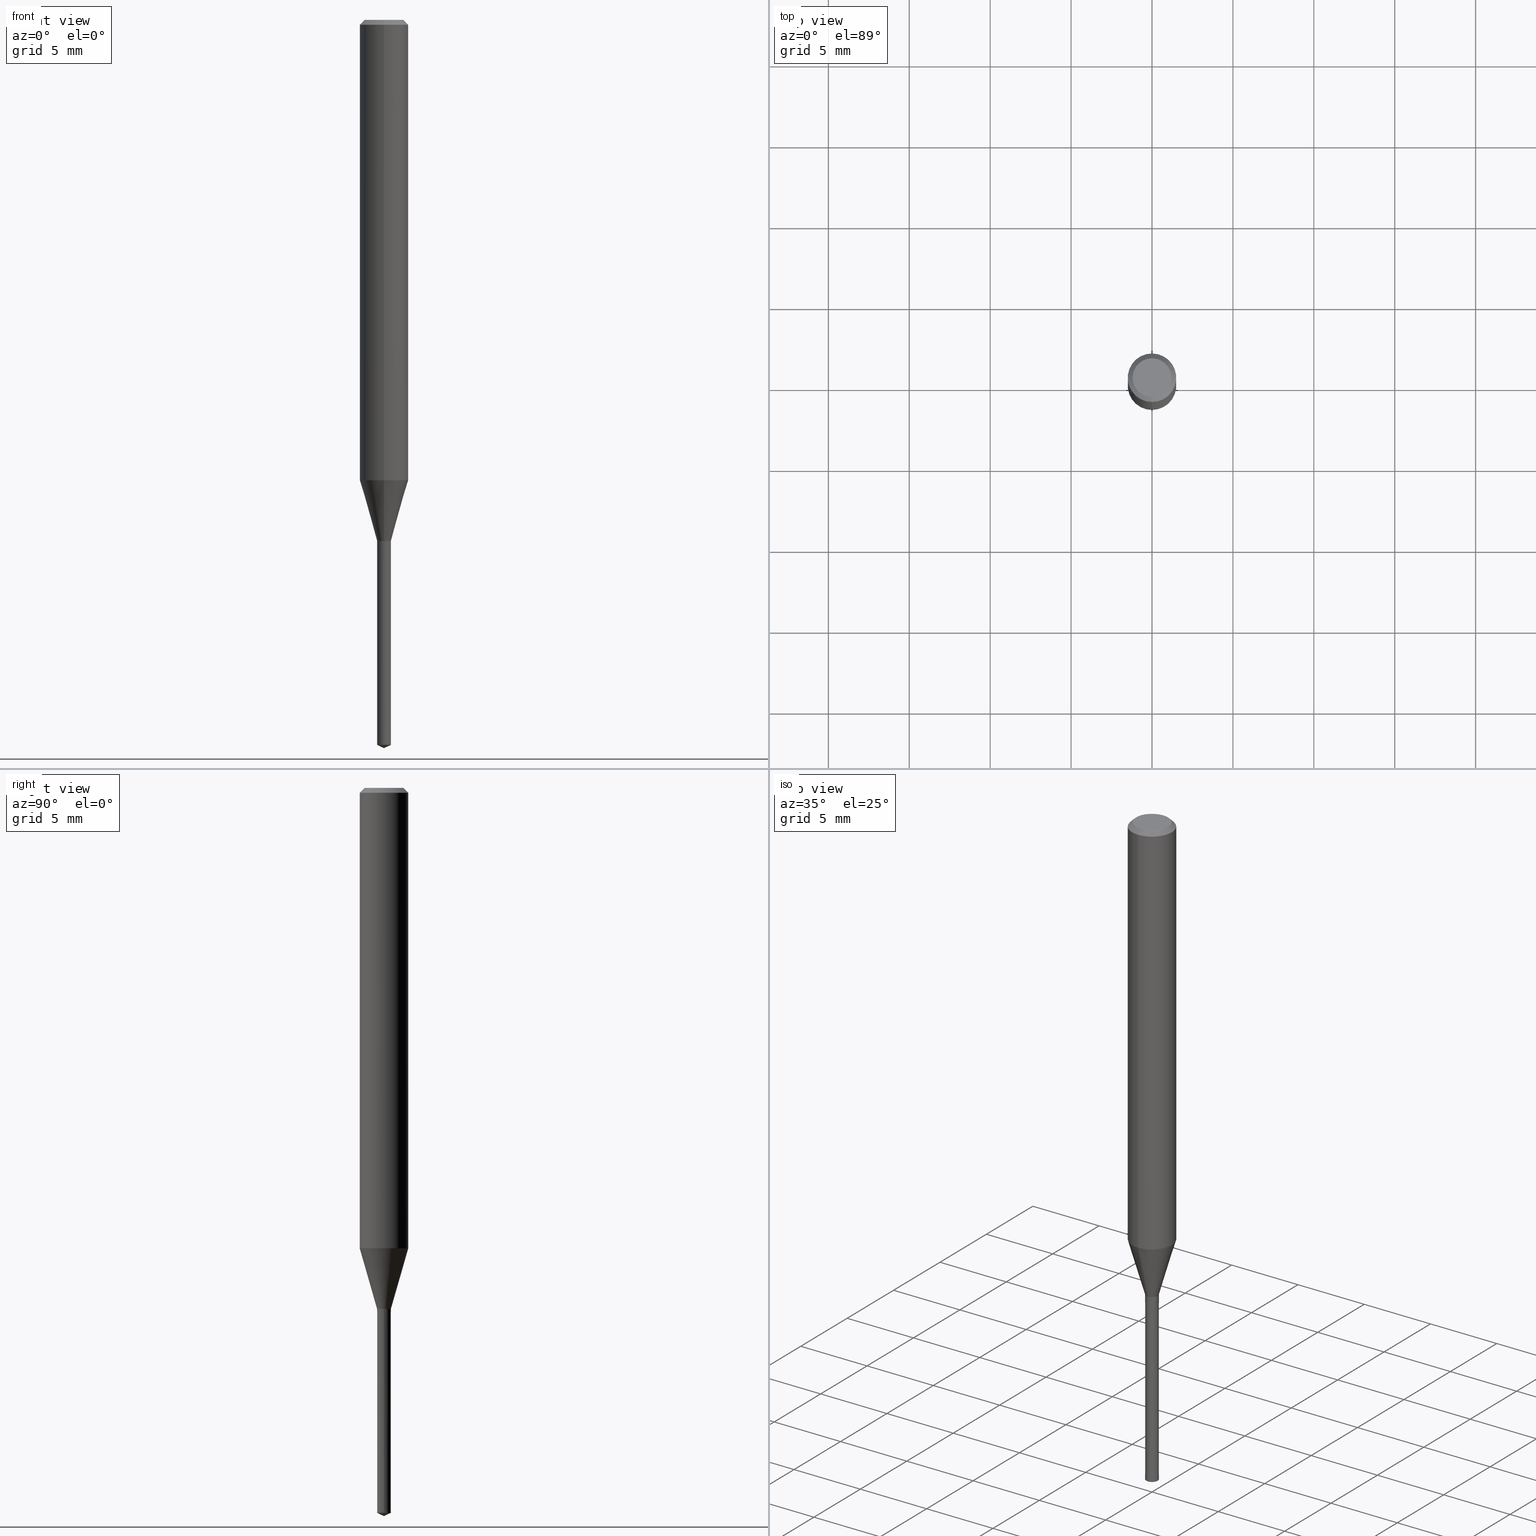
[diagram: canonical four-view strip — front | top / right | iso, engineering-drawing reading convention]
A machine part, canonical four-view strip (front | top / right | iso — engineering-drawing reading convention). The complete STEP part file that produces these views, byte-faithful:
ISO-10303-21;
HEADER;
FILE_DESCRIPTION(('no description'),'unknown implementation level');
FILE_NAME('UTDLX2085-128-Huellk.stp','  ',('CIMSOURCE GmbH'),('CADClick - KiM GmbH - www.kimweb.de'),'unknown preprocess','ACIS','unknown authorization');
FILE_SCHEMA(('automotive_design'));
ENDSEC;
DATA;
#1=MECHANICAL_DESIGN_GEOMETRIC_PRESENTATION_REPRESENTATION(' ',(#14,#15,#16,#17,#18,#19,#20,#21,#22,#23,#24,#25,#26,#27,#28,#29,#30,#31,#32,#33,#34,#35,#36,#37,#38,#39,#40,#41,#42,#43,#44,#45,#46,#47,#48,#49,#50,#51,#52,#53,#54,#55,#56,#57,#58,#59,#60,#61,#62,#63,#64,#65,#66,#67,#68,#69,#70,#71),#10);
#2=PRODUCT_DEFINITION_CONTEXT('',#72,'design');
#3=APPLICATION_PROTOCOL_DEFINITION('INTERNATIONAL STANDARD','automotive_design',1994,#72);
#4=PRODUCT_CATEGORY_RELATIONSHIP('NONE','NONE',#73,#74);
#5=SHAPE_DEFINITION_REPRESENTATION(#75,#76);
#6=PRODUCT_DEFINITION_CONTEXT('',#77,'design');
#7=APPLICATION_PROTOCOL_DEFINITION('INTERNATIONAL STANDARD','automotive_design',1994,#77);
#8=PRODUCT_CATEGORY_RELATIONSHIP('NONE','NONE',#78,#79);
#9=SHAPE_DEFINITION_REPRESENTATION(#80,#81);
#10= (GEOMETRIC_REPRESENTATION_CONTEXT(3)GLOBAL_UNCERTAINTY_ASSIGNED_CONTEXT((#84))GLOBAL_UNIT_ASSIGNED_CONTEXT((#86,#87,#88))REPRESENTATION_CONTEXT('NONE','WORKSPACE'));
#14=STYLED_ITEM('',(#90),#91);
#15=STYLED_ITEM('',(#92),#93);
#16=STYLED_ITEM('',(#94),#95);
#17=STYLED_ITEM('',(#96),#97);
#18=STYLED_ITEM('',(#98),#99);
#19=STYLED_ITEM('',(#100),#101);
#20=STYLED_ITEM('',(#102),#103);
#21=STYLED_ITEM('',(#104),#105);
#22=STYLED_ITEM('',(#106),#107);
#23=STYLED_ITEM('',(#108),#109);
#24=STYLED_ITEM('',(#110),#111);
#25=STYLED_ITEM('',(#112),#113);
#26=STYLED_ITEM('',(#114),#115);
#27=STYLED_ITEM('',(#116),#117);
#28=STYLED_ITEM('',(#118),#119);
#29=STYLED_ITEM('',(#120),#121);
#30=STYLED_ITEM('',(#122),#123);
#31=STYLED_ITEM('',(#124),#125);
#32=STYLED_ITEM('',(#126),#127);
#33=STYLED_ITEM('',(#128),#129);
#34=STYLED_ITEM('',(#130),#131);
#35=STYLED_ITEM('',(#132),#133);
#36=STYLED_ITEM('',(#134),#135);
#37=STYLED_ITEM('',(#136),#137);
#38=STYLED_ITEM('',(#138),#139);
#39=STYLED_ITEM('',(#140),#141);
#40=STYLED_ITEM('',(#142),#143);
#41=STYLED_ITEM('',(#144),#145);
#42=STYLED_ITEM('',(#146),#147);
#43=STYLED_ITEM('',(#148),#149);
#44=STYLED_ITEM('',(#150),#151);
#45=STYLED_ITEM('',(#152),#153);
#46=STYLED_ITEM('',(#154),#155);
#47=STYLED_ITEM('',(#156),#157);
#48=STYLED_ITEM('',(#158),#159);
#49=STYLED_ITEM('',(#160),#161);
#50=STYLED_ITEM('',(#162),#163);
#51=STYLED_ITEM('',(#164),#165);
#52=STYLED_ITEM('',(#166),#167);
#53=STYLED_ITEM('',(#168),#169);
#54=STYLED_ITEM('',(#170),#171);
#55=STYLED_ITEM('',(#172),#173);
#56=STYLED_ITEM('',(#174),#175);
#57=STYLED_ITEM('',(#176),#177);
#58=STYLED_ITEM('',(#178),#179);
#59=STYLED_ITEM('',(#180),#181);
#60=STYLED_ITEM('',(#182),#183);
#61=STYLED_ITEM('',(#184),#185);
#62=STYLED_ITEM('',(#186),#187);
#63=STYLED_ITEM('',(#188),#189);
#64=STYLED_ITEM('',(#190),#191);
#65=STYLED_ITEM('',(#192),#193);
#66=STYLED_ITEM('',(#194),#195);
#67=STYLED_ITEM('',(#196),#197);
#68=STYLED_ITEM('',(#198),#199);
#69=STYLED_ITEM('',(#200),#201);
#70=STYLED_ITEM('',(#202),#203);
#71=STYLED_ITEM('',(#204),#205);
#72=APPLICATION_CONTEXT(' ');
#73=PRODUCT_CATEGORY('part','NONE');
#74=PRODUCT_RELATED_PRODUCT_CATEGORY('detail',' ',(#206));
#75=PRODUCT_DEFINITION_SHAPE('NONE','NONE',#207);
#76=ADVANCED_BREP_SHAPE_REPRESENTATION('1',(#113,#208),#10);
#77=APPLICATION_CONTEXT(' ');
#78=PRODUCT_CATEGORY('part','NONE');
#79=PRODUCT_RELATED_PRODUCT_CATEGORY('detail',' ',(#209));
#80=PRODUCT_DEFINITION_SHAPE('NONE','NONE',#210);
#81=ADVANCED_BREP_SHAPE_REPRESENTATION('2',(#107,#211),#10);
#84=UNCERTAINTY_MEASURE_WITH_UNIT(LENGTH_MEASURE(1.0E-006),#86,'','');
#86= (CONVERSION_BASED_UNIT('MILLIMETRE',#214)LENGTH_UNIT()NAMED_UNIT(#217));
#87= (NAMED_UNIT(#219)PLANE_ANGLE_UNIT()SI_UNIT($,.RADIAN.));
#88= (NAMED_UNIT(#219)SOLID_ANGLE_UNIT()SI_UNIT($,.STERADIAN.));
#90=PRESENTATION_STYLE_ASSIGNMENT((#225));
#91=EDGE_CURVE('',#105,#117,#226,.T.);
#92=PRESENTATION_STYLE_ASSIGNMENT((#227));
#93=VERTEX_POINT('',#228);
#94=PRESENTATION_STYLE_ASSIGNMENT((#229));
#95=ADVANCED_FACE('',(#230),#231,.T.);
#96=PRESENTATION_STYLE_ASSIGNMENT((#232));
#97=EDGE_CURVE('',#161,#93,#233,.T.);
#98=PRESENTATION_STYLE_ASSIGNMENT((#234));
#99=EDGE_CURVE('',#199,#119,#235,.T.);
#100=PRESENTATION_STYLE_ASSIGNMENT((#236));
#101=EDGE_CURVE('',#145,#163,#237,.T.);
#102=PRESENTATION_STYLE_ASSIGNMENT((#238));
#103=ADVANCED_FACE('',(#239),#240,.T.);
#104=PRESENTATION_STYLE_ASSIGNMENT((#241));
#105=VERTEX_POINT('',#242);
#106=PRESENTATION_STYLE_ASSIGNMENT((#243));
#107=MANIFOLD_SOLID_BREP('2',#244);
#108=PRESENTATION_STYLE_ASSIGNMENT((#245));
#109=ADVANCED_FACE('',(#246),#247,.T.);
#110=PRESENTATION_STYLE_ASSIGNMENT((#248));
#111=EDGE_CURVE('',#201,#135,#249,.T.);
#112=PRESENTATION_STYLE_ASSIGNMENT((#250));
#113=MANIFOLD_SOLID_BREP('1',#251);
#114=PRESENTATION_STYLE_ASSIGNMENT((#252));
#115=ADVANCED_FACE('',(#253),#254,.T.);
#116=PRESENTATION_STYLE_ASSIGNMENT((#255));
#117=VERTEX_POINT('',#256);
#118=PRESENTATION_STYLE_ASSIGNMENT((#257));
#119=VERTEX_POINT('',#258);
#120=PRESENTATION_STYLE_ASSIGNMENT((#259));
#121=ADVANCED_FACE('',(#260),#261,.T.);
#122=PRESENTATION_STYLE_ASSIGNMENT((#262));
#123=EDGE_CURVE('',#161,#201,#263,.T.);
#124=PRESENTATION_STYLE_ASSIGNMENT((#264));
#125=EDGE_CURVE('',#119,#105,#265,.T.);
#126=PRESENTATION_STYLE_ASSIGNMENT((#266));
#127=ADVANCED_FACE('',(#267),#268,.T.);
#128=PRESENTATION_STYLE_ASSIGNMENT((#269));
#129=ADVANCED_FACE('',(#270),#271,.T.);
#130=PRESENTATION_STYLE_ASSIGNMENT((#272));
#131=ADVANCED_FACE('',(#273),#274,.T.);
#132=PRESENTATION_STYLE_ASSIGNMENT((#275));
#133=VERTEX_POINT('',#276);
#134=PRESENTATION_STYLE_ASSIGNMENT((#277));
#135=VERTEX_POINT('',#278);
#136=PRESENTATION_STYLE_ASSIGNMENT((#279));
#137=EDGE_CURVE('',#149,#133,#280,.T.);
#138=PRESENTATION_STYLE_ASSIGNMENT((#281));
#139=ADVANCED_FACE('',(#282),#283,.T.);
#140=PRESENTATION_STYLE_ASSIGNMENT((#284));
#141=VERTEX_POINT('',#285);
#142=PRESENTATION_STYLE_ASSIGNMENT((#286));
#143=EDGE_CURVE('',#133,#163,#287,.T.);
#144=PRESENTATION_STYLE_ASSIGNMENT((#288));
#145=VERTEX_POINT('',#289);
#146=PRESENTATION_STYLE_ASSIGNMENT((#290));
#147=EDGE_CURVE('',#93,#179,#291,.T.);
#148=PRESENTATION_STYLE_ASSIGNMENT((#292));
#149=VERTEX_POINT('',#293);
#150=PRESENTATION_STYLE_ASSIGNMENT((#294));
#151=EDGE_CURVE('',#201,#161,#295,.T.);
#152=PRESENTATION_STYLE_ASSIGNMENT((#296));
#153=EDGE_CURVE('',#179,#93,#297,.T.);
#154=PRESENTATION_STYLE_ASSIGNMENT((#298));
#155=EDGE_CURVE('',#165,#117,#299,.T.);
#156=PRESENTATION_STYLE_ASSIGNMENT((#300));
#157=EDGE_CURVE('',#133,#149,#301,.T.);
#158=PRESENTATION_STYLE_ASSIGNMENT((#302));
#159=ADVANCED_FACE('',(#303),#304,.T.);
#160=PRESENTATION_STYLE_ASSIGNMENT((#305));
#161=VERTEX_POINT('',#306);
#162=PRESENTATION_STYLE_ASSIGNMENT((#307));
#163=VERTEX_POINT('',#308);
#164=PRESENTATION_STYLE_ASSIGNMENT((#309));
#165=VERTEX_POINT('',#310);
#166=PRESENTATION_STYLE_ASSIGNMENT((#311));
#167=EDGE_CURVE('',#149,#179,#312,.T.);
#168=PRESENTATION_STYLE_ASSIGNMENT((#313));
#169=EDGE_CURVE('',#163,#145,#314,.T.);
#170=PRESENTATION_STYLE_ASSIGNMENT((#315));
#171=EDGE_CURVE('',#141,#135,#316,.T.);
#172=PRESENTATION_STYLE_ASSIGNMENT((#317));
#173=ADVANCED_FACE('',(#318),#319,.T.);
#174=PRESENTATION_STYLE_ASSIGNMENT((#320));
#175=ADVANCED_FACE('',(#321),#322,.T.);
#176=PRESENTATION_STYLE_ASSIGNMENT((#323));
#177=EDGE_CURVE('',#105,#165,#324,.T.);
#178=PRESENTATION_STYLE_ASSIGNMENT((#325));
#179=VERTEX_POINT('',#326);
#180=PRESENTATION_STYLE_ASSIGNMENT((#327));
#181=EDGE_CURVE('',#141,#161,#328,.T.);
#182=PRESENTATION_STYLE_ASSIGNMENT((#329));
#183=EDGE_CURVE('',#179,#201,#330,.T.);
#184=PRESENTATION_STYLE_ASSIGNMENT((#331));
#185=EDGE_CURVE('',#135,#141,#332,.T.);
#186=PRESENTATION_STYLE_ASSIGNMENT((#333));
#187=EDGE_CURVE('',#93,#133,#334,.T.);
#188=PRESENTATION_STYLE_ASSIGNMENT((#335));
#189=EDGE_CURVE('',#117,#105,#336,.T.);
#190=PRESENTATION_STYLE_ASSIGNMENT((#337));
#191=ADVANCED_FACE('',(#338),#339,.T.);
#192=PRESENTATION_STYLE_ASSIGNMENT((#340));
#193=ADVANCED_FACE('',(#341),#342,.T.);
#194=PRESENTATION_STYLE_ASSIGNMENT((#343));
#195=EDGE_CURVE('',#119,#199,#344,.T.);
#196=PRESENTATION_STYLE_ASSIGNMENT((#345));
#197=EDGE_CURVE('',#145,#149,#346,.T.);
#198=PRESENTATION_STYLE_ASSIGNMENT((#347));
#199=VERTEX_POINT('',#348);
#200=PRESENTATION_STYLE_ASSIGNMENT((#349));
#201=VERTEX_POINT('',#350);
#202=PRESENTATION_STYLE_ASSIGNMENT((#351));
#203=EDGE_CURVE('',#117,#199,#352,.T.);
#204=PRESENTATION_STYLE_ASSIGNMENT((#353));
#205=ADVANCED_FACE('',(#354),#355,.T.);
#206=PRODUCT('1','1','PART-1-DESC',(#356));
#207=PRODUCT_DEFINITION('NONE','NONE',#357,#2);
#208=AXIS2_PLACEMENT_3D('',#358,#359,#360);
#209=PRODUCT('2','2','PART-2-DESC',(#361));
#210=PRODUCT_DEFINITION('NONE','NONE',#362,#6);
#211=AXIS2_PLACEMENT_3D('',#363,#364,#365);
#214=LENGTH_MEASURE_WITH_UNIT(LENGTH_MEASURE(1.0),#366);
#217=DIMENSIONAL_EXPONENTS(1.0,0.0,0.0,0.0,0.0,0.0,0.0);
#219=DIMENSIONAL_EXPONENTS(0.0,0.0,0.0,0.0,0.0,0.0,0.0);
#225=CURVE_STYLE('',#367,POSITIVE_LENGTH_MEASURE(1.0E-006),#368);
#226=CIRCLE('',#369,0.425);
#227=POINT_STYLE(' ',#370,POSITIVE_LENGTH_MEASURE(1.0E-006),#371);
#228=CARTESIAN_POINT('',(1.83690953073357E-016,-1.5,-28.451));
#229=SURFACE_STYLE_USAGE(.BOTH.,#372);
#230=FACE_OUTER_BOUND('',#373,.T.);
#231=CONICAL_SURFACE('',#374,1.35,0.785398163397447);
#232=CURVE_STYLE('',#375,POSITIVE_LENGTH_MEASURE(1.0E-006),#376);
#233=LINE('',#377,#378);
#234=CURVE_STYLE('',#379,POSITIVE_LENGTH_MEASURE(1.0E-006),#380);
#235=CIRCLE('',#381,0.426);
#236=CURVE_STYLE('',#382,POSITIVE_LENGTH_MEASURE(1.0E-006),#383);
#237=CIRCLE('',#384,1.2);
#238=SURFACE_STYLE_USAGE(.BOTH.,#385);
#239=FACE_OUTER_BOUND('',#386,.T.);
#240=PLANE('',#387);
#241=POINT_STYLE(' ',#388,POSITIVE_LENGTH_MEASURE(1.0E-006),#389);
#242=CARTESIAN_POINT('',(-0.425,0.0,-44.80181925));
#243=SURFACE_STYLE_USAGE(.BOTH.,#390);
#244=CLOSED_SHELL('',(#191,#159,#115,#129,#193));
#245=SURFACE_STYLE_USAGE(.BOTH.,#391);
#246=FACE_OUTER_BOUND('',#392,.T.);
#247=CYLINDRICAL_SURFACE('',#393,1.5);
#248=CURVE_STYLE('',#394,POSITIVE_LENGTH_MEASURE(1.0E-006),#395);
#249=LINE('',#396,#397);
#250=SURFACE_STYLE_USAGE(.BOTH.,#398);
#251=CLOSED_SHELL('',(#205,#175,#109,#131,#139,#95,#173,#121,#127,#103));
#252=SURFACE_STYLE_USAGE(.BOTH.,#399);
#253=FACE_OUTER_BOUND('',#400,.T.);
#254=PLANE('',#401);
#255=POINT_STYLE(' ',#402,POSITIVE_LENGTH_MEASURE(1.0E-006),#403);
#256=CARTESIAN_POINT('',(0.425,5.2045770037451E-017,-44.80181925));
#257=POINT_STYLE(' ',#404,POSITIVE_LENGTH_MEASURE(1.0E-006),#405);
#258=CARTESIAN_POINT('',(-0.426,0.0,-32.2));
#259=SURFACE_STYLE_USAGE(.BOTH.,#406);
#260=FACE_OUTER_BOUND('',#407,.T.);
#261=CONICAL_SURFACE('',#408,0.9625,0.279311816116806);
#262=CURVE_STYLE('',#409,POSITIVE_LENGTH_MEASURE(1.0E-006),#410);
#263=CIRCLE('',#411,0.425);
#264=CURVE_STYLE('',#412,POSITIVE_LENGTH_MEASURE(1.0E-006),#413);
#265=LINE('',#414,#415);
#266=SURFACE_STYLE_USAGE(.BOTH.,#416);
#267=FACE_OUTER_BOUND('',#417,.T.);
#268=CONICAL_SURFACE('',#418,0.42525,0.523598775598408);
#269=SURFACE_STYLE_USAGE(.BOTH.,#419);
#270=FACE_OUTER_BOUND('',#420,.T.);
#271=CONICAL_SURFACE('',#421,0.4255,7.93536217321163E-005);
#272=SURFACE_STYLE_USAGE(.BOTH.,#422);
#273=FACE_OUTER_BOUND('',#423,.T.);
#274=CONICAL_SURFACE('',#424,1.35,0.785398163397447);
#275=POINT_STYLE(' ',#425,POSITIVE_LENGTH_MEASURE(1.0E-006),#426);
#276=CARTESIAN_POINT('',(1.83690953073357E-016,-1.5,-0.300000000000001));
#277=POINT_STYLE(' ',#427,POSITIVE_LENGTH_MEASURE(1.0E-006),#428);
#278=CARTESIAN_POINT('',(0.0,0.4255,-32.2));
#279=CURVE_STYLE('',#429,POSITIVE_LENGTH_MEASURE(1.0E-006),#430);
#280=CIRCLE('',#431,1.5);
#281=SURFACE_STYLE_USAGE(.BOTH.,#432);
#282=FACE_OUTER_BOUND('',#433,.T.);
#283=PLANE('',#434);
#284=POINT_STYLE(' ',#435,POSITIVE_LENGTH_MEASURE(1.0E-006),#436);
#285=CARTESIAN_POINT('',(5.21070003551421E-017,-0.4255,-32.2));
#286=CURVE_STYLE('',#437,POSITIVE_LENGTH_MEASURE(1.0E-006),#438);
#287=LINE('',#439,#440);
#288=POINT_STYLE(' ',#441,POSITIVE_LENGTH_MEASURE(1.0E-006),#442);
#289=CARTESIAN_POINT('',(0.0,1.2,0.0));
#290=CURVE_STYLE('',#443,POSITIVE_LENGTH_MEASURE(1.0E-006),#444);
#291=CIRCLE('',#445,1.5);
#292=POINT_STYLE(' ',#446,POSITIVE_LENGTH_MEASURE(1.0E-006),#447);
#293=CARTESIAN_POINT('',(0.0,1.5,-0.300000000000001));
#294=CURVE_STYLE('',#448,POSITIVE_LENGTH_MEASURE(1.0E-006),#449);
#295=CIRCLE('',#450,0.425);
#296=CURVE_STYLE('',#451,POSITIVE_LENGTH_MEASURE(1.0E-006),#452);
#297=CIRCLE('',#453,1.5);
#298=CURVE_STYLE('',#454,POSITIVE_LENGTH_MEASURE(1.0E-006),#455);
#299=LINE('',#456,#457);
#300=CURVE_STYLE('',#458,POSITIVE_LENGTH_MEASURE(1.0E-006),#459);
#301=CIRCLE('',#460,1.5);
#302=SURFACE_STYLE_USAGE(.BOTH.,#461);
#303=FACE_OUTER_BOUND('',#462,.T.);
#304=CONICAL_SURFACE('',#463,0.4255,7.93536217321163E-005);
#305=POINT_STYLE(' ',#464,POSITIVE_LENGTH_MEASURE(1.0E-006),#465);
#306=CARTESIAN_POINT('',(5.2045770037451E-017,-0.425,-32.1991339745962));
#307=POINT_STYLE(' ',#466,POSITIVE_LENGTH_MEASURE(1.0E-006),#467);
#308=CARTESIAN_POINT('',(1.46952762458685E-016,-1.2,0.0));
#309=POINT_STYLE(' ',#468,POSITIVE_LENGTH_MEASURE(1.0E-006),#469);
#310=CARTESIAN_POINT('',(0.0,0.0,-45.0));
#311=CURVE_STYLE('',#470,POSITIVE_LENGTH_MEASURE(1.0E-006),#471);
#312=LINE('',#472,#473);
#313=CURVE_STYLE('',#474,POSITIVE_LENGTH_MEASURE(1.0E-006),#475);
#314=CIRCLE('',#476,1.2);
#315=CURVE_STYLE('',#477,POSITIVE_LENGTH_MEASURE(1.0E-006),#478);
#316=CIRCLE('',#479,0.4255);
#317=SURFACE_STYLE_USAGE(.BOTH.,#480);
#318=FACE_OUTER_BOUND('',#481,.T.);
#319=CYLINDRICAL_SURFACE('',#482,1.5);
#320=SURFACE_STYLE_USAGE(.BOTH.,#483);
#321=FACE_OUTER_BOUND('',#484,.T.);
#322=CONICAL_SURFACE('',#485,0.9625,0.279311816116806);
#323=CURVE_STYLE('',#486,POSITIVE_LENGTH_MEASURE(1.0E-006),#487);
#324=LINE('',#488,#489);
#325=POINT_STYLE(' ',#490,POSITIVE_LENGTH_MEASURE(1.0E-006),#491);
#326=CARTESIAN_POINT('',(0.0,1.5,-28.451));
#327=CURVE_STYLE('',#492,POSITIVE_LENGTH_MEASURE(1.0E-006),#493);
#328=LINE('',#494,#495);
#329=CURVE_STYLE('',#496,POSITIVE_LENGTH_MEASURE(1.0E-006),#497);
#330=LINE('',#498,#499);
#331=CURVE_STYLE('',#500,POSITIVE_LENGTH_MEASURE(1.0E-006),#501);
#332=CIRCLE('',#502,0.4255);
#333=CURVE_STYLE('',#503,POSITIVE_LENGTH_MEASURE(1.0E-006),#504);
#334=LINE('',#505,#506);
#335=CURVE_STYLE('',#507,POSITIVE_LENGTH_MEASURE(1.0E-006),#508);
#336=CIRCLE('',#509,0.425);
#337=SURFACE_STYLE_USAGE(.BOTH.,#510);
#338=FACE_OUTER_BOUND('',#511,.T.);
#339=CONICAL_SURFACE('',#512,0.2125,1.13446402291064);
#340=SURFACE_STYLE_USAGE(.BOTH.,#513);
#341=FACE_OUTER_BOUND('',#514,.T.);
#342=CONICAL_SURFACE('',#515,0.2125,1.13446402291064);
#343=CURVE_STYLE('',#516,POSITIVE_LENGTH_MEASURE(1.0E-006),#517);
#344=CIRCLE('',#518,0.426);
#345=CURVE_STYLE('',#519,POSITIVE_LENGTH_MEASURE(1.0E-006),#520);
#346=LINE('',#521,#522);
#347=POINT_STYLE(' ',#523,POSITIVE_LENGTH_MEASURE(1.0E-006),#524);
#348=CARTESIAN_POINT('',(0.426,5.21682306728333E-017,-32.2));
#349=POINT_STYLE(' ',#525,POSITIVE_LENGTH_MEASURE(1.0E-006),#526);
#350=CARTESIAN_POINT('',(0.0,0.425,-32.1991339745962));
#351=CURVE_STYLE('',#527,POSITIVE_LENGTH_MEASURE(1.0E-006),#528);
#352=LINE('',#529,#530);
#353=SURFACE_STYLE_USAGE(.BOTH.,#531);
#354=FACE_OUTER_BOUND('',#532,.T.);
#355=CONICAL_SURFACE('',#533,0.42525,0.523598775598408);
#356=PRODUCT_CONTEXT('',#72,'mechanical');
#357=PRODUCT_DEFINITION_FORMATION_WITH_SPECIFIED_SOURCE(' ','NONE',#206,.NOT_KNOWN.);
#358=CARTESIAN_POINT('',(0.0,0.0,0.0));
#359=DIRECTION('',(0.0,0.0,1.0));
#360=DIRECTION('',(1.0,0.0,0.0));
#361=PRODUCT_CONTEXT('',#77,'mechanical');
#362=PRODUCT_DEFINITION_FORMATION_WITH_SPECIFIED_SOURCE(' ','NONE',#209,.NOT_KNOWN.);
#363=CARTESIAN_POINT('',(0.0,0.0,0.0));
#364=DIRECTION('',(0.0,0.0,1.0));
#365=DIRECTION('',(1.0,0.0,0.0));
#366= (NAMED_UNIT(#217)LENGTH_UNIT()SI_UNIT(.MILLI.,.METRE.));
#367=DRAUGHTING_PRE_DEFINED_CURVE_FONT('continuous');
#368=COLOUR_RGB('',0.800000011920929,0.800000011920929,0.800000011920929);
#369=AXIS2_PLACEMENT_3D('',#535,#536,#537);
#370=PRE_DEFINED_MARKER('');
#371=COLOUR_RGB('',0.498039215803146,0.498039215803146,0.498039215803146);
#372=SURFACE_SIDE_STYLE('',(#538));
#373=EDGE_LOOP('',(#539,#540,#541,#542));
#374=AXIS2_PLACEMENT_3D('',#543,#544,#545);
#375=DRAUGHTING_PRE_DEFINED_CURVE_FONT('continuous');
#376=COLOUR_RGB('',0.498039215803146,0.498039215803146,0.498039215803146);
#377=CARTESIAN_POINT('',(1.17868361555404E-016,-0.9625,-30.3250669872981));
#378=VECTOR('',#546,1.0);
#379=DRAUGHTING_PRE_DEFINED_CURVE_FONT('continuous');
#380=COLOUR_RGB('',0.800000011920929,0.800000011920929,0.800000011920929);
#381=AXIS2_PLACEMENT_3D('',#547,#548,#549);
#382=DRAUGHTING_PRE_DEFINED_CURVE_FONT('continuous');
#383=COLOUR_RGB('',0.498039215803146,0.498039215803146,0.498039215803146);
#384=AXIS2_PLACEMENT_3D('',#550,#551,#552);
#385=SURFACE_SIDE_STYLE('',(#553));
#386=EDGE_LOOP('',(#554,#555));
#387=AXIS2_PLACEMENT_3D('',#556,#557,#558);
#388=PRE_DEFINED_MARKER('');
#389=COLOUR_RGB('',0.800000011920929,0.800000011920929,0.800000011920929);
#390=SURFACE_SIDE_STYLE('',(#559));
#391=SURFACE_SIDE_STYLE('',(#560));
#392=EDGE_LOOP('',(#561,#562,#563,#564));
#393=AXIS2_PLACEMENT_3D('',#565,#566,#567);
#394=DRAUGHTING_PRE_DEFINED_CURVE_FONT('continuous');
#395=COLOUR_RGB('',0.498039215803146,0.498039215803146,0.498039215803146);
#396=CARTESIAN_POINT('',(-5.20763851962966E-017,0.42525,-32.1995669872981));
#397=VECTOR('',#568,1.0);
#398=SURFACE_SIDE_STYLE('',(#569));
#399=SURFACE_SIDE_STYLE('',(#570));
#400=EDGE_LOOP('',(#571,#572));
#401=AXIS2_PLACEMENT_3D('',#573,#574,#575);
#402=PRE_DEFINED_MARKER('');
#403=COLOUR_RGB('',0.800000011920929,0.800000011920929,0.800000011920929);
#404=PRE_DEFINED_MARKER('');
#405=COLOUR_RGB('',0.800000011920929,0.800000011920929,0.800000011920929);
#406=SURFACE_SIDE_STYLE('',(#576));
#407=EDGE_LOOP('',(#577,#578,#579,#580));
#408=AXIS2_PLACEMENT_3D('',#581,#582,#583);
#409=DRAUGHTING_PRE_DEFINED_CURVE_FONT('continuous');
#410=COLOUR_RGB('',0.498039215803146,0.498039215803146,0.498039215803146);
#411=AXIS2_PLACEMENT_3D('',#584,#585,#586);
#412=DRAUGHTING_PRE_DEFINED_CURVE_FONT('continuous');
#413=COLOUR_RGB('',0.800000011920929,0.800000011920929,0.800000011920929);
#414=CARTESIAN_POINT('',(-0.4255,-5.21070003551421E-017,-38.500909625));
#415=VECTOR('',#587,1.0);
#416=SURFACE_SIDE_STYLE('',(#588));
#417=EDGE_LOOP('',(#589,#590,#591,#592));
#418=AXIS2_PLACEMENT_3D('',#593,#594,#595);
#419=SURFACE_SIDE_STYLE('',(#596));
#420=EDGE_LOOP('',(#597,#598,#599,#600));
#421=AXIS2_PLACEMENT_3D('',#601,#602,#603);
#422=SURFACE_SIDE_STYLE('',(#604));
#423=EDGE_LOOP('',(#605,#606,#607,#608));
#424=AXIS2_PLACEMENT_3D('',#609,#610,#611);
#425=PRE_DEFINED_MARKER('');
#426=COLOUR_RGB('',0.498039215803146,0.498039215803146,0.498039215803146);
#427=PRE_DEFINED_MARKER('');
#428=COLOUR_RGB('',0.498039215803146,0.498039215803146,0.498039215803146);
#429=DRAUGHTING_PRE_DEFINED_CURVE_FONT('continuous');
#430=COLOUR_RGB('',0.498039215803146,0.498039215803146,0.498039215803146);
#431=AXIS2_PLACEMENT_3D('',#612,#613,#614);
#432=SURFACE_SIDE_STYLE('',(#615));
#433=EDGE_LOOP('',(#616,#617));
#434=AXIS2_PLACEMENT_3D('',#618,#619,#620);
#435=PRE_DEFINED_MARKER('');
#436=COLOUR_RGB('',0.498039215803146,0.498039215803146,0.498039215803146);
#437=DRAUGHTING_PRE_DEFINED_CURVE_FONT('continuous');
#438=COLOUR_RGB('',0.498039215803146,0.498039215803146,0.498039215803146);
#439=CARTESIAN_POINT('',(1.65321857766021E-016,-1.35,-0.150000000000002));
#440=VECTOR('',#621,1.0);
#441=PRE_DEFINED_MARKER('');
#442=COLOUR_RGB('',0.498039215803146,0.498039215803146,0.498039215803146);
#443=DRAUGHTING_PRE_DEFINED_CURVE_FONT('continuous');
#444=COLOUR_RGB('',0.498039215803146,0.498039215803146,0.498039215803146);
#445=AXIS2_PLACEMENT_3D('',#622,#623,#624);
#446=PRE_DEFINED_MARKER('');
#447=COLOUR_RGB('',0.498039215803146,0.498039215803146,0.498039215803146);
#448=DRAUGHTING_PRE_DEFINED_CURVE_FONT('continuous');
#449=COLOUR_RGB('',0.498039215803146,0.498039215803146,0.498039215803146);
#450=AXIS2_PLACEMENT_3D('',#625,#626,#627);
#451=DRAUGHTING_PRE_DEFINED_CURVE_FONT('continuous');
#452=COLOUR_RGB('',0.498039215803146,0.498039215803146,0.498039215803146);
#453=AXIS2_PLACEMENT_3D('',#628,#629,#630);
#454=DRAUGHTING_PRE_DEFINED_CURVE_FONT('continuous');
#455=COLOUR_RGB('',0.800000011920929,0.800000011920929,0.800000011920929);
#456=CARTESIAN_POINT('',(0.2125,2.60228850187255E-017,-44.900909625));
#457=VECTOR('',#631,1.0);
#458=DRAUGHTING_PRE_DEFINED_CURVE_FONT('continuous');
#459=COLOUR_RGB('',0.498039215803146,0.498039215803146,0.498039215803146);
#460=AXIS2_PLACEMENT_3D('',#632,#633,#634);
#461=SURFACE_SIDE_STYLE('',(#635));
#462=EDGE_LOOP('',(#636,#637,#638,#639));
#463=AXIS2_PLACEMENT_3D('',#640,#641,#642);
#464=PRE_DEFINED_MARKER('');
#465=COLOUR_RGB('',0.498039215803146,0.498039215803146,0.498039215803146);
#466=PRE_DEFINED_MARKER('');
#467=COLOUR_RGB('',0.498039215803146,0.498039215803146,0.498039215803146);
#468=PRE_DEFINED_MARKER('');
#469=COLOUR_RGB('',0.800000011920929,0.800000011920929,0.800000011920929);
#470=DRAUGHTING_PRE_DEFINED_CURVE_FONT('continuous');
#471=COLOUR_RGB('',0.498039215803146,0.498039215803146,0.498039215803146);
#472=CARTESIAN_POINT('',(-1.83690953073357E-016,1.5,-14.3755));
#473=VECTOR('',#643,1.0);
#474=DRAUGHTING_PRE_DEFINED_CURVE_FONT('continuous');
#475=COLOUR_RGB('',0.498039215803146,0.498039215803146,0.498039215803146);
#476=AXIS2_PLACEMENT_3D('',#644,#645,#646);
#477=DRAUGHTING_PRE_DEFINED_CURVE_FONT('continuous');
#478=COLOUR_RGB('',0.498039215803146,0.498039215803146,0.498039215803146);
#479=AXIS2_PLACEMENT_3D('',#647,#648,#649);
#480=SURFACE_SIDE_STYLE('',(#650));
#481=EDGE_LOOP('',(#651,#652,#653,#654));
#482=AXIS2_PLACEMENT_3D('',#655,#656,#657);
#483=SURFACE_SIDE_STYLE('',(#658));
#484=EDGE_LOOP('',(#659,#660,#661,#662));
#485=AXIS2_PLACEMENT_3D('',#663,#664,#665);
#486=DRAUGHTING_PRE_DEFINED_CURVE_FONT('continuous');
#487=COLOUR_RGB('',0.800000011920929,0.800000011920929,0.800000011920929);
#488=CARTESIAN_POINT('',(-0.2125,-2.60228850187255E-017,-44.900909625));
#489=VECTOR('',#666,1.0);
#490=PRE_DEFINED_MARKER('');
#491=COLOUR_RGB('',0.498039215803146,0.498039215803146,0.498039215803146);
#492=DRAUGHTING_PRE_DEFINED_CURVE_FONT('continuous');
#493=COLOUR_RGB('',0.498039215803146,0.498039215803146,0.498039215803146);
#494=CARTESIAN_POINT('',(5.20763851962966E-017,-0.42525,-32.1995669872981));
#495=VECTOR('',#667,1.0);
#496=DRAUGHTING_PRE_DEFINED_CURVE_FONT('continuous');
#497=COLOUR_RGB('',0.498039215803146,0.498039215803146,0.498039215803146);
#498=CARTESIAN_POINT('',(-1.17868361555404E-016,0.9625,-30.3250669872981));
#499=VECTOR('',#668,1.0);
#500=DRAUGHTING_PRE_DEFINED_CURVE_FONT('continuous');
#501=COLOUR_RGB('',0.498039215803146,0.498039215803146,0.498039215803146);
#502=AXIS2_PLACEMENT_3D('',#669,#670,#671);
#503=DRAUGHTING_PRE_DEFINED_CURVE_FONT('continuous');
#504=COLOUR_RGB('',0.498039215803146,0.498039215803146,0.498039215803146);
#505=CARTESIAN_POINT('',(1.83690953073357E-016,-1.5,-14.3755));
#506=VECTOR('',#672,1.0);
#507=DRAUGHTING_PRE_DEFINED_CURVE_FONT('continuous');
#508=COLOUR_RGB('',0.800000011920929,0.800000011920929,0.800000011920929);
#509=AXIS2_PLACEMENT_3D('',#673,#674,#675);
#510=SURFACE_SIDE_STYLE('',(#676));
#511=EDGE_LOOP('',(#677,#678,#679));
#512=AXIS2_PLACEMENT_3D('',#680,#681,#682);
#513=SURFACE_SIDE_STYLE('',(#683));
#514=EDGE_LOOP('',(#684,#685,#686));
#515=AXIS2_PLACEMENT_3D('',#687,#688,#689);
#516=DRAUGHTING_PRE_DEFINED_CURVE_FONT('continuous');
#517=COLOUR_RGB('',0.800000011920929,0.800000011920929,0.800000011920929);
#518=AXIS2_PLACEMENT_3D('',#690,#691,#692);
#519=DRAUGHTING_PRE_DEFINED_CURVE_FONT('continuous');
#520=COLOUR_RGB('',0.498039215803146,0.498039215803146,0.498039215803146);
#521=CARTESIAN_POINT('',(-1.65321857766021E-016,1.35,-0.150000000000002));
#522=VECTOR('',#693,1.0);
#523=PRE_DEFINED_MARKER('');
#524=COLOUR_RGB('',0.800000011920929,0.800000011920929,0.800000011920929);
#525=PRE_DEFINED_MARKER('');
#526=COLOUR_RGB('',0.498039215803146,0.498039215803146,0.498039215803146);
#527=DRAUGHTING_PRE_DEFINED_CURVE_FONT('continuous');
#528=COLOUR_RGB('',0.800000011920929,0.800000011920929,0.800000011920929);
#529=CARTESIAN_POINT('',(0.4255,5.21070003551421E-017,-38.500909625));
#530=VECTOR('',#694,1.0);
#531=SURFACE_SIDE_STYLE('',(#695));
#532=EDGE_LOOP('',(#696,#697,#698,#699));
#533=AXIS2_PLACEMENT_3D('',#700,#701,#702);
#535=CARTESIAN_POINT('',(0.0,0.0,-44.80181925));
#536=DIRECTION('',(0.0,0.0,-1.0));
#537=DIRECTION('',(-1.0,0.0,0.0));
#538=SURFACE_STYLE_FILL_AREA(#703);
#539=ORIENTED_EDGE('',*,*,#197,.T.);
#540=ORIENTED_EDGE('',*,*,#157,.F.);
#541=ORIENTED_EDGE('',*,*,#143,.T.);
#542=ORIENTED_EDGE('',*,*,#169,.T.);
#543=CARTESIAN_POINT('',(0.0,0.0,-0.150000000000002));
#544=DIRECTION('',(0.0,-0.0,-1.0));
#545=DIRECTION('',(0.0,1.0,0.0));
#546=DIRECTION('',(3.3761686941431E-017,-0.275694200312208,0.961245394222626));
#547=CARTESIAN_POINT('',(0.0,0.0,-32.2));
#548=DIRECTION('',(0.0,0.0,-1.0));
#549=DIRECTION('',(-1.0,0.0,0.0));
#550=CARTESIAN_POINT('',(0.0,0.0,0.0));
#551=DIRECTION('',(0.0,0.0,-1.0));
#552=DIRECTION('',(0.0,1.0,0.0));
#553=SURFACE_STYLE_FILL_AREA(#704);
#554=ORIENTED_EDGE('',*,*,#185,.T.);
#555=ORIENTED_EDGE('',*,*,#171,.T.);
#556=CARTESIAN_POINT('',(0.0,0.21275,-32.2));
#557=DIRECTION('',(0.0,0.0,-1.0));
#558=DIRECTION('',(0.0,1.0,0.0));
#559=SURFACE_STYLE_FILL_AREA(#705);
#560=SURFACE_STYLE_FILL_AREA(#706);
#561=ORIENTED_EDGE('',*,*,#167,.F.);
#562=ORIENTED_EDGE('',*,*,#137,.T.);
#563=ORIENTED_EDGE('',*,*,#187,.F.);
#564=ORIENTED_EDGE('',*,*,#153,.F.);
#565=CARTESIAN_POINT('',(0.0,0.0,-14.3755));
#566=DIRECTION('',(-0.0,-0.0,1.0));
#567=DIRECTION('',(0.0,1.0,0.0));
#568=DIRECTION('',(-6.123031769113E-017,0.500000000000091,-0.866025403784386));
#569=SURFACE_STYLE_FILL_AREA(#707);
#570=SURFACE_STYLE_FILL_AREA(#708);
#571=ORIENTED_EDGE('',*,*,#195,.F.);
#572=ORIENTED_EDGE('',*,*,#99,.F.);
#573=CARTESIAN_POINT('',(-0.213,0.0,-32.2));
#574=DIRECTION('',(0.0,0.0,1.0));
#575=DIRECTION('',(1.0,0.0,0.0));
#576=SURFACE_STYLE_FILL_AREA(#709);
#577=ORIENTED_EDGE('',*,*,#183,.T.);
#578=ORIENTED_EDGE('',*,*,#123,.F.);
#579=ORIENTED_EDGE('',*,*,#97,.T.);
#580=ORIENTED_EDGE('',*,*,#147,.T.);
#581=CARTESIAN_POINT('',(0.0,0.0,-30.3250669872981));
#582=DIRECTION('',(-0.0,-0.0,1.0));
#583=DIRECTION('',(0.0,1.0,0.0));
#584=CARTESIAN_POINT('',(0.0,0.0,-32.1991339745962));
#585=DIRECTION('',(0.0,0.0,-1.0));
#586=DIRECTION('',(0.0,1.0,0.0));
#587=DIRECTION('',(7.93536216488347E-005,9.717694926998E-021,-0.999999996851501));
#588=SURFACE_STYLE_FILL_AREA(#710);
#589=ORIENTED_EDGE('',*,*,#111,.T.);
#590=ORIENTED_EDGE('',*,*,#171,.F.);
#591=ORIENTED_EDGE('',*,*,#181,.T.);
#592=ORIENTED_EDGE('',*,*,#123,.T.);
#593=CARTESIAN_POINT('',(0.0,0.0,-32.1995669872981));
#594=DIRECTION('',(0.0,-0.0,-1.0));
#595=DIRECTION('',(0.0,1.0,0.0));
#596=SURFACE_STYLE_FILL_AREA(#711);
#597=ORIENTED_EDGE('',*,*,#125,.T.);
#598=ORIENTED_EDGE('',*,*,#189,.F.);
#599=ORIENTED_EDGE('',*,*,#203,.T.);
#600=ORIENTED_EDGE('',*,*,#99,.T.);
#601=CARTESIAN_POINT('',(0.0,0.0,-38.500909625));
#602=DIRECTION('',(-0.0,-0.0,1.0));
#603=DIRECTION('',(-1.0,0.0,0.0));
#604=SURFACE_STYLE_FILL_AREA(#712);
#605=ORIENTED_EDGE('',*,*,#197,.F.);
#606=ORIENTED_EDGE('',*,*,#101,.T.);
#607=ORIENTED_EDGE('',*,*,#143,.F.);
#608=ORIENTED_EDGE('',*,*,#137,.F.);
#609=CARTESIAN_POINT('',(0.0,0.0,-0.150000000000002));
#610=DIRECTION('',(0.0,-0.0,-1.0));
#611=DIRECTION('',(0.0,1.0,0.0));
#612=CARTESIAN_POINT('',(0.0,0.0,-0.300000000000001));
#613=DIRECTION('',(0.0,0.0,-1.0));
#614=DIRECTION('',(0.0,1.0,0.0));
#615=SURFACE_STYLE_FILL_AREA(#713);
#616=ORIENTED_EDGE('',*,*,#101,.F.);
#617=ORIENTED_EDGE('',*,*,#169,.F.);
#618=CARTESIAN_POINT('',(0.0,0.6,0.0));
#619=DIRECTION('',(-0.0,0.0,1.0));
#620=DIRECTION('',(0.0,-1.0,0.0));
#621=DIRECTION('',(-8.65927457071934E-017,0.707106781186546,0.707106781186549));
#622=CARTESIAN_POINT('',(0.0,0.0,-28.451));
#623=DIRECTION('',(0.0,0.0,-1.0));
#624=DIRECTION('',(0.0,1.0,0.0));
#625=CARTESIAN_POINT('',(0.0,0.0,-32.1991339745962));
#626=DIRECTION('',(0.0,0.0,-1.0));
#627=DIRECTION('',(0.0,1.0,0.0));
#628=CARTESIAN_POINT('',(0.0,0.0,-28.451));
#629=DIRECTION('',(0.0,0.0,-1.0));
#630=DIRECTION('',(0.0,1.0,0.0));
#631=DIRECTION('',(0.90630779088852,1.1098702792408E-016,0.422618253480337));
#632=CARTESIAN_POINT('',(0.0,0.0,-0.300000000000001));
#633=DIRECTION('',(0.0,0.0,-1.0));
#634=DIRECTION('',(0.0,1.0,0.0));
#635=SURFACE_STYLE_FILL_AREA(#714);
#636=ORIENTED_EDGE('',*,*,#125,.F.);
#637=ORIENTED_EDGE('',*,*,#195,.T.);
#638=ORIENTED_EDGE('',*,*,#203,.F.);
#639=ORIENTED_EDGE('',*,*,#91,.F.);
#640=CARTESIAN_POINT('',(0.0,0.0,-38.500909625));
#641=DIRECTION('',(-0.0,-0.0,1.0));
#642=DIRECTION('',(-1.0,0.0,0.0));
#643=DIRECTION('',(0.0,0.0,-1.0));
#644=CARTESIAN_POINT('',(0.0,0.0,0.0));
#645=DIRECTION('',(0.0,0.0,-1.0));
#646=DIRECTION('',(0.0,1.0,0.0));
#647=CARTESIAN_POINT('',(0.0,0.0,-32.2));
#648=DIRECTION('',(0.0,0.0,-1.0));
#649=DIRECTION('',(0.0,1.0,0.0));
#650=SURFACE_STYLE_FILL_AREA(#715);
#651=ORIENTED_EDGE('',*,*,#167,.T.);
#652=ORIENTED_EDGE('',*,*,#147,.F.);
#653=ORIENTED_EDGE('',*,*,#187,.T.);
#654=ORIENTED_EDGE('',*,*,#157,.T.);
#655=CARTESIAN_POINT('',(0.0,0.0,-14.3755));
#656=DIRECTION('',(-0.0,-0.0,1.0));
#657=DIRECTION('',(0.0,1.0,0.0));
#658=SURFACE_STYLE_FILL_AREA(#716);
#659=ORIENTED_EDGE('',*,*,#183,.F.);
#660=ORIENTED_EDGE('',*,*,#153,.T.);
#661=ORIENTED_EDGE('',*,*,#97,.F.);
#662=ORIENTED_EDGE('',*,*,#151,.F.);
#663=CARTESIAN_POINT('',(0.0,0.0,-30.3250669872981));
#664=DIRECTION('',(-0.0,-0.0,1.0));
#665=DIRECTION('',(0.0,1.0,0.0));
#666=DIRECTION('',(0.90630779088852,1.1098702792408E-016,-0.422618253480337));
#667=DIRECTION('',(-6.123031769113E-017,0.500000000000091,0.866025403784386));
#668=DIRECTION('',(3.3761686941431E-017,-0.275694200312208,-0.961245394222626));
#669=CARTESIAN_POINT('',(0.0,0.0,-32.2));
#670=DIRECTION('',(0.0,0.0,-1.0));
#671=DIRECTION('',(0.0,1.0,0.0));
#672=DIRECTION('',(-0.0,-0.0,1.0));
#673=CARTESIAN_POINT('',(0.0,0.0,-44.80181925));
#674=DIRECTION('',(0.0,0.0,-1.0));
#675=DIRECTION('',(-1.0,0.0,0.0));
#676=SURFACE_STYLE_FILL_AREA(#717);
#677=ORIENTED_EDGE('',*,*,#155,.F.);
#678=ORIENTED_EDGE('',*,*,#177,.F.);
#679=ORIENTED_EDGE('',*,*,#91,.T.);
#680=CARTESIAN_POINT('',(0.0,0.0,-44.900909625));
#681=DIRECTION('',(-0.0,-0.0,1.0));
#682=DIRECTION('',(-1.0,0.0,0.0));
#683=SURFACE_STYLE_FILL_AREA(#718);
#684=ORIENTED_EDGE('',*,*,#155,.T.);
#685=ORIENTED_EDGE('',*,*,#189,.T.);
#686=ORIENTED_EDGE('',*,*,#177,.T.);
#687=CARTESIAN_POINT('',(0.0,0.0,-44.900909625));
#688=DIRECTION('',(-0.0,-0.0,1.0));
#689=DIRECTION('',(-1.0,0.0,0.0));
#690=CARTESIAN_POINT('',(0.0,0.0,-32.2));
#691=DIRECTION('',(0.0,0.0,-1.0));
#692=DIRECTION('',(-1.0,0.0,0.0));
#693=DIRECTION('',(-8.65927457071934E-017,0.707106781186546,-0.707106781186549));
#694=DIRECTION('',(7.93536216488347E-005,9.717694926998E-021,0.999999996851501));
#695=SURFACE_STYLE_FILL_AREA(#719);
#696=ORIENTED_EDGE('',*,*,#111,.F.);
#697=ORIENTED_EDGE('',*,*,#151,.T.);
#698=ORIENTED_EDGE('',*,*,#181,.F.);
#699=ORIENTED_EDGE('',*,*,#185,.F.);
#700=CARTESIAN_POINT('',(0.0,0.0,-32.1995669872981));
#701=DIRECTION('',(0.0,-0.0,-1.0));
#702=DIRECTION('',(0.0,1.0,0.0));
#703=FILL_AREA_STYLE('',(#720));
#704=FILL_AREA_STYLE('',(#721));
#705=FILL_AREA_STYLE('',(#722));
#706=FILL_AREA_STYLE('',(#723));
#707=FILL_AREA_STYLE('',(#724));
#708=FILL_AREA_STYLE('',(#725));
#709=FILL_AREA_STYLE('',(#726));
#710=FILL_AREA_STYLE('',(#727));
#711=FILL_AREA_STYLE('',(#728));
#712=FILL_AREA_STYLE('',(#729));
#713=FILL_AREA_STYLE('',(#730));
#714=FILL_AREA_STYLE('',(#731));
#715=FILL_AREA_STYLE('',(#732));
#716=FILL_AREA_STYLE('',(#733));
#717=FILL_AREA_STYLE('',(#734));
#718=FILL_AREA_STYLE('',(#735));
#719=FILL_AREA_STYLE('',(#736));
#720=FILL_AREA_STYLE_COLOUR('',#737);
#721=FILL_AREA_STYLE_COLOUR('',#738);
#722=FILL_AREA_STYLE_COLOUR('',#739);
#723=FILL_AREA_STYLE_COLOUR('',#740);
#724=FILL_AREA_STYLE_COLOUR('',#741);
#725=FILL_AREA_STYLE_COLOUR('',#742);
#726=FILL_AREA_STYLE_COLOUR('',#743);
#727=FILL_AREA_STYLE_COLOUR('',#744);
#728=FILL_AREA_STYLE_COLOUR('',#745);
#729=FILL_AREA_STYLE_COLOUR('',#746);
#730=FILL_AREA_STYLE_COLOUR('',#747);
#731=FILL_AREA_STYLE_COLOUR('',#748);
#732=FILL_AREA_STYLE_COLOUR('',#749);
#733=FILL_AREA_STYLE_COLOUR('',#750);
#734=FILL_AREA_STYLE_COLOUR('',#751);
#735=FILL_AREA_STYLE_COLOUR('',#752);
#736=FILL_AREA_STYLE_COLOUR('',#753);
#737=COLOUR_RGB('',0.498039215803146,0.498039215803146,0.498039215803146);
#738=COLOUR_RGB('',0.498039215803146,0.498039215803146,0.498039215803146);
#739=COLOUR_RGB('',0.800000011920929,0.800000011920929,0.800000011920929);
#740=COLOUR_RGB('',0.498039215803146,0.498039215803146,0.498039215803146);
#741=COLOUR_RGB('',0.498039215803146,0.498039215803146,0.498039215803146);
#742=COLOUR_RGB('',0.800000011920929,0.800000011920929,0.800000011920929);
#743=COLOUR_RGB('',0.498039215803146,0.498039215803146,0.498039215803146);
#744=COLOUR_RGB('',0.498039215803146,0.498039215803146,0.498039215803146);
#745=COLOUR_RGB('',0.800000011920929,0.800000011920929,0.800000011920929);
#746=COLOUR_RGB('',0.498039215803146,0.498039215803146,0.498039215803146);
#747=COLOUR_RGB('',0.498039215803146,0.498039215803146,0.498039215803146);
#748=COLOUR_RGB('',0.800000011920929,0.800000011920929,0.800000011920929);
#749=COLOUR_RGB('',0.498039215803146,0.498039215803146,0.498039215803146);
#750=COLOUR_RGB('',0.498039215803146,0.498039215803146,0.498039215803146);
#751=COLOUR_RGB('',0.800000011920929,0.800000011920929,0.800000011920929);
#752=COLOUR_RGB('',0.800000011920929,0.800000011920929,0.800000011920929);
#753=COLOUR_RGB('',0.498039215803146,0.498039215803146,0.498039215803146);
#754=AXIS2_PLACEMENT_3D('PCS',#755,#756,#757);
#755=CARTESIAN_POINT('',(0.0,0.0,0.0));
#756=DIRECTION('',(0.0,0.0,1.0));
#757=DIRECTION('',(1.0,0.0,0.0));
#758=AXIS2_PLACEMENT_3D('CIP',#759,#760,#761);
#759=CARTESIAN_POINT('',(0.0,0.0,-45.0));
#760=DIRECTION('',(0.0,0.0,1.0));
#761=DIRECTION('',(1.0,0.0,0.0));
#762=AXIS2_PLACEMENT_3D('CRP',#763,#764,#765);
#763=CARTESIAN_POINT('',(-0.425,0.0,-44.8018));
#764=DIRECTION('',(0.0,0.0,1.0));
#765=DIRECTION('',(1.0,0.0,0.0));
#766=AXIS2_PLACEMENT_3D('MCS',#767,#768,#769);
#767=CARTESIAN_POINT('',(0.0,0.0,-28.451));
#768=DIRECTION('',(0.0,0.0,1.0));
#769=DIRECTION('',(1.0,0.0,0.0));
#770=CONSTRUCTIVE_GEOMETRY_REPRESENTATION_RELATIONSHIP('coordinate systems',$,#76,#771);
#771=CONSTRUCTIVE_GEOMETRY_REPRESENTATION('coordinate systems',(#754,#758,#762,#766),#10);
ENDSEC;
END-ISO-10303-21;
